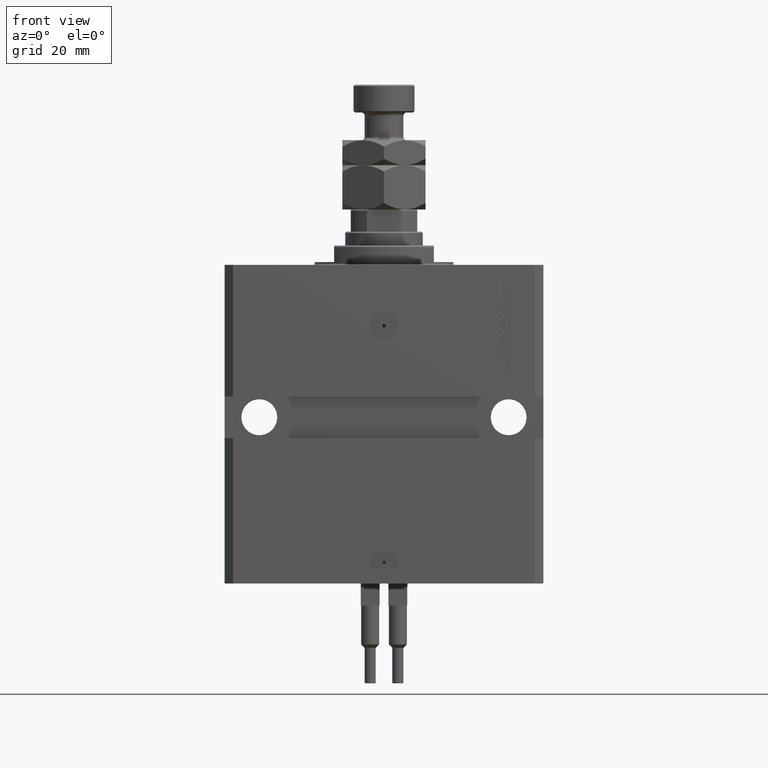
[diagram: clean part render]
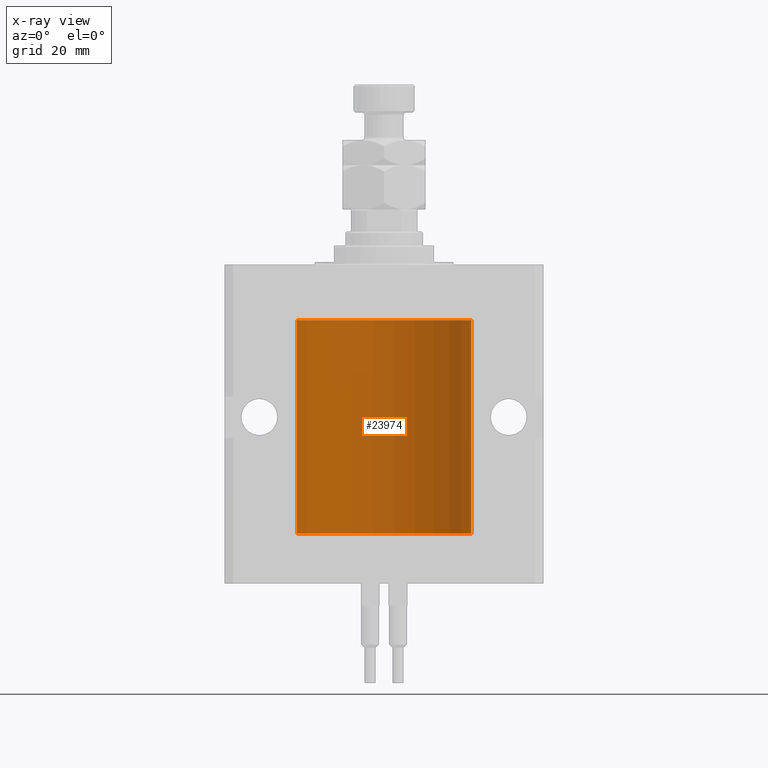
[diagram: x-ray — body ghosted, one internal face saturated and labeled with its STEP entity id]
A machine part, front view, then the same camera in x-ray: the body is ghosted and one INTERNAL B-rep face — a face not visible from any outside direction — is saturated and labeled: STEP entity #23974.
In plain terms, the highlighted cylindrical surface (partial cylindrical patch) has radius 31.5 mm, axis along (0, 0, 1).
Its self-contained STEP definition (entity closure, byte-faithful):
#11 = ORIENTED_EDGE ( 'NONE', *, *, #41646, .T. ) ;
#310 = EDGE_CURVE ( 'NONE', #31530, #39894, #43806, .T. ) ;
#510 = CARTESIAN_POINT ( 'NONE',  ( -31.49966591610108679, 0.1636376958180631447, -28.39126189995838700 ) ) ;
#559 = VECTOR ( 'NONE', #47430, 1000.000000000000000 ) ;
#1350 = CARTESIAN_POINT ( 'NONE',  ( 31.49379899281745665, 0.6250000000082825968, -93.99999999999906208 ) ) ;
#1520 = DIRECTION ( 'NONE',  ( 0.000000000000000000, 0.000000000000000000, 1.000000000000000000 ) ) ;
#1564 = CARTESIAN_POINT ( 'NONE',  ( -31.49853548231893541, 0.3253851488062156627, -94.55855470525685291 ) ) ;
#1673 = EDGE_CURVE ( 'NONE', #33724, #4848, #29247, .T. ) ;
#1993 = LINE ( 'NONE', #2501, #23047 ) ;
#2481 = DIRECTION ( 'NONE',  ( -0.000000000000000000, -0.000000000000000000, 1.000000000000000000 ) ) ;
#2501 = CARTESIAN_POINT ( 'NONE',  ( -31.50000000000000000, 3.857637417314162689E-15, -97.09999999999999432 ) ) ;
#2606 = B_SPLINE_CURVE_WITH_KNOTS ( 'NONE', 3,
 ( #7161, #20460, #40554, #8453, #12627, #4510, #28538, #1350 ),
 .UNSPECIFIED., .F., .F.,
 ( 4, 2, 2, 4 ),
 ( 2.422664849601941982E-18, 0.0002443157997801665674, 0.0004886315995603306411, 0.0009772631991206588969 ),
 .UNSPECIFIED. ) ;
#3096 = CARTESIAN_POINT ( 'NONE',  ( 0.000000000000000000, 0.000000000000000000, -20.00000000000000355 ) ) ;
#3259 = CARTESIAN_POINT ( 'NONE',  ( 31.50000000000000000, 0.000000000000000000, -97.09999999999999432 ) ) ;
#3317 = CARTESIAN_POINT ( 'NONE',  ( -31.49999999999998579, 0.08259258789479348439, -93.37500000000000000 ) ) ;
#3989 = VERTEX_POINT ( 'NONE', #8031 ) ;
#4009 = EDGE_CURVE ( 'NONE', #5163, #34681, #47613, .T. ) ;
#4235 = AXIS2_PLACEMENT_3D ( 'NONE', #3096, #8078, #47530 ) ;
#4510 = CARTESIAN_POINT ( 'NONE',  ( 31.49527883250257432, 0.5574151849338155884, -94.32638608454756479 ) ) ;
#4687 = CARTESIAN_POINT ( 'NONE',  ( -31.49770767031179730, 0.3843648832734374854, -28.50046081259655395 ) ) ;
#4848 = VERTEX_POINT ( 'NONE', #20703 ) ;
#5163 = VERTEX_POINT ( 'NONE', #33160 ) ;
#5694 = CARTESIAN_POINT ( 'NONE',  ( 31.49379899281745665, 0.6250000000082756024, -28.99999999999905853 ) ) ;
#5897 = CARTESIAN_POINT ( 'NONE',  ( -31.50000000000000000, 3.857637417314162689E-15, -97.09999999999999432 ) ) ;
#6256 = CARTESIAN_POINT ( 'NONE',  ( 31.49379899281762363, 0.6249999999996236344, -93.83697036533062885 ) ) ;
#6306 = CARTESIAN_POINT ( 'NONE',  ( 31.50000000000000000, 0.000000000000000000, -97.09999999999999432 ) ) ;
#6837 = VERTEX_POINT ( 'NONE', #6918 ) ;
#6918 = CARTESIAN_POINT ( 'NONE',  ( -31.50000000000000000, -4.251325257806427560E-16, -93.37500000000001421 ) ) ;
#7161 = CARTESIAN_POINT ( 'NONE',  ( 31.50000000000000000, -2.492939093807799249E-15, -94.62500000000000000 ) ) ;
#7877 = CARTESIAN_POINT ( 'NONE',  ( -31.50000000000000000, 0.08259258789479792529, -28.37500000000000355 ) ) ;
#7970 = ORIENTED_EDGE ( 'NONE', *, *, #42374, .F. ) ;
#8031 = CARTESIAN_POINT ( 'NONE',  ( -31.50000000000006395, 3.480981133599635230E-13, -94.62500000000325429 ) ) ;
#8078 = DIRECTION ( 'NONE',  ( 0.000000000000000000, 0.000000000000000000, 1.000000000000000000 ) ) ;
#8453 = CARTESIAN_POINT ( 'NONE',  ( 31.49851501686590893, 0.3150934959385818801, -94.54594721883859165 ) ) ;
#10201 = CARTESIAN_POINT ( 'NONE',  ( 31.49853627283156499, 0.3253078817183396310, -93.44140989403643971 ) ) ;
#10560 = CARTESIAN_POINT ( 'NONE',  ( 31.50000000000006395, 3.442404531757459093E-13, -28.37499999999677058 ) ) ;
#10567 = CIRCLE ( 'NONE', #44738, 31.50000000000000000 ) ;
#10706 = CARTESIAN_POINT ( 'NONE',  ( 31.49526225382467359, 0.5586305680866429091, -93.67476160622148029 ) ) ;
#10918 = CARTESIAN_POINT ( 'NONE',  ( -31.49999999999998579, 0.1631661150515253123, -94.62499999999984368 ) ) ;
#10963 = CARTESIAN_POINT ( 'NONE',  ( 31.49379899281745665, 0.6250000000082825968, -93.99999999999906208 ) ) ;
#11590 = DIRECTION ( 'NONE',  ( -0.000000000000000000, -0.000000000000000000, 1.000000000000000000 ) ) ;
#12627 = CARTESIAN_POINT ( 'NONE',  ( 31.49770674525946390, 0.3844410175904657834, -94.49948347834465778 ) ) ;
#12747 = CARTESIAN_POINT ( 'NONE',  ( -31.50000000000000000, 3.857637417314162689E-15, -97.09999999999999432 ) ) ;
#13470 = CARTESIAN_POINT ( 'NONE',  ( -31.50000000000006395, 3.480980906124966778E-13, -29.62500000000323297 ) ) ;
#13699 = CARTESIAN_POINT ( 'NONE',  ( 31.49853627283156499, 0.3253078817183363558, -28.44140989403645747 ) ) ;
#14704 = VECTOR ( 'NONE', #11590, 1000.000000000000000 ) ;
#15284 = DIRECTION ( 'NONE',  ( -0.000000000000000000, -0.000000000000000000, 1.000000000000000000 ) ) ;
#15780 = CARTESIAN_POINT ( 'NONE',  ( 31.50000000000000000, 0.000000000000000000, -97.09999999999999432 ) ) ;
#15884 = CARTESIAN_POINT ( 'NONE',  ( 31.50000000000000000, -1.286676774952591455E-15, -29.62500000000000000 ) ) ;
#15981 = CARTESIAN_POINT ( 'NONE',  ( -31.49526081842315151, 0.5587119163470772865, -29.32511513093050937 ) ) ;
#15987 = ORIENTED_EDGE ( 'NONE', *, *, #37065, .F. ) ;
#16145 = CARTESIAN_POINT ( 'NONE',  ( 31.49527883250257432, 0.5574151849338060405, -29.32638608454755058 ) ) ;
#16485 = CARTESIAN_POINT ( 'NONE',  ( -31.49380014137586414, 0.6249421240571522151, -28.83671479190292075 ) ) ;
#17525 = CARTESIAN_POINT ( 'NONE',  ( -31.49526081842315151, 0.5587119163470745109, -94.32511513093052713 ) ) ;
#17842 = VERTEX_POINT ( 'NONE', #30899 ) ;
#18412 = CYLINDRICAL_SURFACE ( 'NONE', #47153, 31.50000000000000000 ) ;
#19134 = VERTEX_POINT ( 'NONE', #40164 ) ;
#19273 = CARTESIAN_POINT ( 'NONE',  ( -31.49380014137585704, 0.6249421240571509939, -93.83671479190290654 ) ) ;
#19477 = EDGE_CURVE ( 'NONE', #49773, #33724, #30332, .T. ) ;
#19934 = CARTESIAN_POINT ( 'NONE',  ( 31.50000000000000000, 0.000000000000000000, -97.09999999999999432 ) ) ;
#19979 = EDGE_CURVE ( 'NONE', #31530, #4848, #32585, .T. ) ;
#20460 = CARTESIAN_POINT ( 'NONE',  ( 31.50000000000000000, 0.08261130139621999935, -94.62499999999998579 ) ) ;
#20640 = CARTESIAN_POINT ( 'NONE',  ( -31.49853548231893541, 0.3253851488062238784, -29.55855470525682094 ) ) ;
#20703 = CARTESIAN_POINT ( 'NONE',  ( -31.50000000000000000, 3.857637417314162689E-15, -20.00000000000000355 ) ) ;
#21395 = CARTESIAN_POINT ( 'NONE',  ( 0.000000000000000000, 0.000000000000000000, -97.09999999999999432 ) ) ;
#21459 = ORIENTED_EDGE ( 'NONE', *, *, #4009, .T. ) ;
#21606 = DIRECTION ( 'NONE',  ( -0.000000000000000000, -0.000000000000000000, 1.000000000000000000 ) ) ;
#21717 = EDGE_CURVE ( 'NONE', #34681, #49773, #23429, .T. ) ;
#22090 = ORIENTED_EDGE ( 'NONE', *, *, #26542, .F. ) ;
#22445 = B_SPLINE_CURVE_WITH_KNOTS ( 'NONE', 3,
 ( #31270, #3317, #29785, #47225, #39125, #45740, #19273, #49400, #17525, #1564, #10918, #51158 ),
 .UNSPECIFIED., .F., .F.,
 ( 4, 2, 2, 2, 2, 4 ),
 ( 3.073805012515772486E-18, 0.0002442604562134843577, 0.0004885209124269655713, 0.0009770418248538986165, 0.001465562737280831770, 0.001954083649707764707 ),
 .UNSPECIFIED. ) ;
#22566 = CARTESIAN_POINT ( 'NONE',  ( 31.49379899281745665, 0.6250000000082756024, -28.99999999999905853 ) ) ;
#22589 = DIRECTION ( 'NONE',  ( 1.000000000000000000, 0.000000000000000000, 0.000000000000000000 ) ) ;
#22927 = CARTESIAN_POINT ( 'NONE',  ( 31.49966575203784558, 0.1636755595825546972, -29.60873030821186802 ) ) ;
#23047 = VECTOR ( 'NONE', #21606, 1000.000000000000000 ) ;
#23429 = B_SPLINE_CURVE_WITH_KNOTS ( 'NONE', 3,
 ( #22566, #41903, #30391, #13699, #41636, #10560 ),
 .UNSPECIFIED., .F., .F.,
 ( 4, 2, 4 ),
 ( 0.0009772631991206452359, 0.001465673424414174614, 0.001954083649707703992 ),
 .UNSPECIFIED. ) ;
#23547 = ORIENTED_EDGE ( 'NONE', *, *, #1673, .T. ) ;
#23809 = CARTESIAN_POINT ( 'NONE',  ( -31.49379784581975983, 0.6250577973157599443, -29.16284184848848327 ) ) ;
#23974 = ADVANCED_FACE ( 'NONE', ( #46884 ), #18412, .F. ) ;
#24563 = CARTESIAN_POINT ( 'NONE',  ( -31.50000000000000711, 0.1631661150515227865, -29.62499999999986500 ) ) ;
#26190 = EDGE_CURVE ( 'NONE', #19134, #5163, #39785, .T. ) ;
#26542 = EDGE_CURVE ( 'NONE', #29865, #47826, #10567, .T. ) ;
#27301 = LINE ( 'NONE', #3259, #559 ) ;
#27872 = CARTESIAN_POINT ( 'NONE',  ( 31.49851501686590893, 0.3150934959385772727, -29.54594721883858099 ) ) ;
#27938 = ORIENTED_EDGE ( 'NONE', *, *, #33551, .T. ) ;
#28538 = CARTESIAN_POINT ( 'NONE',  ( 31.49379899281760942, 0.6250000000003405054, -94.16310352862701905 ) ) ;
#28719 = CARTESIAN_POINT ( 'NONE',  ( -31.50000000000006395, 3.480980906124966778E-13, -29.62500000000323297 ) ) ;
#29247 = CIRCLE ( 'NONE', #4235, 31.50000000000000000 ) ;
#29785 = CARTESIAN_POINT ( 'NONE',  ( -31.49966591610109390, 0.1636376958180623953, -93.39126189995842253 ) ) ;
#29865 = VERTEX_POINT ( 'NONE', #19934 ) ;
#30277 = VECTOR ( 'NONE', #50725, 1000.000000000000000 ) ;
#30332 = LINE ( 'NONE', #6306, #30277 ) ;
#30391 = CARTESIAN_POINT ( 'NONE',  ( 31.49526225382467359, 0.5586305680866376910, -28.67476160622149806 ) ) ;
#30413 = CARTESIAN_POINT ( 'NONE',  ( 0.000000000000000000, 0.000000000000000000, -97.09999999999999432 ) ) ;
#30534 = CARTESIAN_POINT ( 'NONE',  ( 31.50000000000000000, 0.1631291455194407158, -93.37500000000017053 ) ) ;
#30754 = EDGE_LOOP ( 'NONE', ( #7970, #22090, #11, #50142, #45402, #51515, #21459, #44981, #40751, #23547, #41572, #44479, #15987, #27938 ) ) ;
#30899 = CARTESIAN_POINT ( 'NONE',  ( 31.50000000000000000, -2.492939093807799249E-15, -94.62500000000000000 ) ) ;
#31270 = CARTESIAN_POINT ( 'NONE',  ( -31.50000000000000000, -4.251325257806427560E-16, -93.37500000000001421 ) ) ;
#31530 = VERTEX_POINT ( 'NONE', #39733 ) ;
#31789 = CARTESIAN_POINT ( 'NONE',  ( 31.50000000000000711, 0.08261130139621915280, -29.62499999999999289 ) ) ;
#32046 = CARTESIAN_POINT ( 'NONE',  ( 31.49379899281760231, 0.6250000000003351763, -29.16310352862698352 ) ) ;
#32378 = DIRECTION ( 'NONE',  ( 1.000000000000000000, 0.000000000000000000, 0.000000000000000000 ) ) ;
#32585 = LINE ( 'NONE', #12747, #37815 ) ;
#32590 = EDGE_CURVE ( 'NONE', #48596, #19134, #34978, .T. ) ;
#32645 = CARTESIAN_POINT ( 'NONE',  ( -31.49851563474691929, 0.3150284575672404608, -28.45401791159624949 ) ) ;
#33160 = CARTESIAN_POINT ( 'NONE',  ( 31.50000000000000000, -1.286676774952591455E-15, -29.62500000000000000 ) ) ;
#33551 = EDGE_CURVE ( 'NONE', #6837, #3989, #22445, .T. ) ;
#33724 = VERTEX_POINT ( 'NONE', #37499 ) ;
#34681 = VERTEX_POINT ( 'NONE', #5694 ) ;
#34715 = CARTESIAN_POINT ( 'NONE',  ( 31.50000000000006395, 3.442404755096224483E-13, -93.37499999999675993 ) ) ;
#34978 = B_SPLINE_CURVE_WITH_KNOTS ( 'NONE', 3,
 ( #10963, #6256, #10706, #10201, #30534, #34715 ),
 .UNSPECIFIED., .F., .F.,
 ( 4, 2, 4 ),
 ( 0.0009772631991206588969, 0.001465673424414194563, 0.001954083649707730446 ),
 .UNSPECIFIED. ) ;
#36071 = CARTESIAN_POINT ( 'NONE',  ( -31.49528028230854559, 0.5573323339569596913, -28.67349008819320488 ) ) ;
#37065 = EDGE_CURVE ( 'NONE', #6837, #39894, #1993, .T. ) ;
#37499 = CARTESIAN_POINT ( 'NONE',  ( 31.50000000000000000, 0.000000000000000000, -20.00000000000000355 ) ) ;
#37815 = VECTOR ( 'NONE', #44605, 1000.000000000000000 ) ;
#39125 = CARTESIAN_POINT ( 'NONE',  ( -31.49770767031179730, 0.3843648832734367082, -93.50046081259655750 ) ) ;
#39733 = CARTESIAN_POINT ( 'NONE',  ( -31.50000000000000000, 6.762885151983182724E-15, -28.37500000000000355 ) ) ;
#39785 = LINE ( 'NONE', #15780, #14704 ) ;
#39891 = CARTESIAN_POINT ( 'NONE',  ( 31.49770674525947101, 0.3844410175904570126, -29.49948347834465068 ) ) ;
#39894 = VERTEX_POINT ( 'NONE', #13470 ) ;
#40164 = CARTESIAN_POINT ( 'NONE',  ( 31.50000000000006395, 3.442404755096224483E-13, -93.37499999999675993 ) ) ;
#40554 = CARTESIAN_POINT ( 'NONE',  ( 31.49966575203785268, 0.1636755595825563903, -94.60873030821187513 ) ) ;
#40738 = CARTESIAN_POINT ( 'NONE',  ( -31.50000000000000000, 6.762885151983182724E-15, -28.37500000000000355 ) ) ;
#40751 = ORIENTED_EDGE ( 'NONE', *, *, #19477, .T. ) ;
#41572 = ORIENTED_EDGE ( 'NONE', *, *, #19979, .F. ) ;
#41636 = CARTESIAN_POINT ( 'NONE',  ( 31.50000000000000000, 0.1631291455194386619, -28.37500000000015277 ) ) ;
#41646 = EDGE_CURVE ( 'NONE', #29865, #17842, #27301, .T. ) ;
#41903 = CARTESIAN_POINT ( 'NONE',  ( 31.49379899281762363, 0.6249999999996151967, -28.83697036533062885 ) ) ;
#42374 = EDGE_CURVE ( 'NONE', #47826, #3989, #46652, .T. ) ;
#43133 = VECTOR ( 'NONE', #2481, 1000.000000000000000 ) ;
#43806 = B_SPLINE_CURVE_WITH_KNOTS ( 'NONE', 3,
 ( #40738, #7877, #510, #32645, #4687, #36071, #16485, #23809, #15981, #20640, #24563, #28719 ),
 .UNSPECIFIED., .F., .F.,
 ( 4, 2, 2, 2, 2, 4 ),
 ( 5.322949309211407119E-19, 0.0002442604562134704257, 0.0004885209124269403094, 0.0009770418248538795345, 0.001465562737280818977, 0.001954083649707758635 ),
 .UNSPECIFIED. ) ;
#44479 = ORIENTED_EDGE ( 'NONE', *, *, #310, .T. ) ;
#44605 = DIRECTION ( 'NONE',  ( -0.000000000000000000, -0.000000000000000000, 1.000000000000000000 ) ) ;
#44731 = CARTESIAN_POINT ( 'NONE',  ( -31.50000000000000000, 3.857637417314162689E-15, -97.09999999999999432 ) ) ;
#44738 = AXIS2_PLACEMENT_3D ( 'NONE', #21395, #1520, #32378 ) ;
#44981 = ORIENTED_EDGE ( 'NONE', *, *, #21717, .T. ) ;
#45402 = ORIENTED_EDGE ( 'NONE', *, *, #32590, .T. ) ;
#45740 = CARTESIAN_POINT ( 'NONE',  ( -31.49528028230855270, 0.5573323339569600243, -93.67349008819324752 ) ) ;
#46652 = LINE ( 'NONE', #5897, #43133 ) ;
#46884 = FACE_OUTER_BOUND ( 'NONE', #30754, .T. ) ;
#47153 = AXIS2_PLACEMENT_3D ( 'NONE', #30413, #15284, #22589 ) ;
#47225 = CARTESIAN_POINT ( 'NONE',  ( -31.49851563474691218, 0.3150284575672397946, -93.45401791159622462 ) ) ;
#47430 = DIRECTION ( 'NONE',  ( -0.000000000000000000, -0.000000000000000000, 1.000000000000000000 ) ) ;
#47530 = DIRECTION ( 'NONE',  ( 1.000000000000000000, 0.000000000000000000, 0.000000000000000000 ) ) ;
#47613 = B_SPLINE_CURVE_WITH_KNOTS ( 'NONE', 3,
 ( #15884, #31789, #22927, #27872, #39891, #16145, #32046, #47998 ),
 .UNSPECIFIED., .F., .F.,
 ( 4, 2, 2, 4 ),
 ( 1.824539386392990385E-18, 0.0002443157997801608753, 0.0004886315995603199075, 0.0009772631991206452359 ),
 .UNSPECIFIED. ) ;
#47826 = VERTEX_POINT ( 'NONE', #44731 ) ;
#47998 = CARTESIAN_POINT ( 'NONE',  ( 31.49379899281745665, 0.6250000000082756024, -28.99999999999905853 ) ) ;
#48596 = VERTEX_POINT ( 'NONE', #51330 ) ;
#49400 = CARTESIAN_POINT ( 'NONE',  ( -31.49379784581975272, 0.6250577973157657174, -94.16284184848846905 ) ) ;
#49773 = VERTEX_POINT ( 'NONE', #50534 ) ;
#50118 = EDGE_CURVE ( 'NONE', #17842, #48596, #2606, .T. ) ;
#50142 = ORIENTED_EDGE ( 'NONE', *, *, #50118, .T. ) ;
#50534 = CARTESIAN_POINT ( 'NONE',  ( 31.50000000000006395, 3.442404531757459093E-13, -28.37499999999677058 ) ) ;
#50725 = DIRECTION ( 'NONE',  ( -0.000000000000000000, -0.000000000000000000, 1.000000000000000000 ) ) ;
#51158 = CARTESIAN_POINT ( 'NONE',  ( -31.50000000000006395, 3.480981133599635230E-13, -94.62500000000325429 ) ) ;
#51330 = CARTESIAN_POINT ( 'NONE',  ( 31.49379899281745665, 0.6250000000082825968, -93.99999999999906208 ) ) ;
#51515 = ORIENTED_EDGE ( 'NONE', *, *, #26190, .T. ) ;